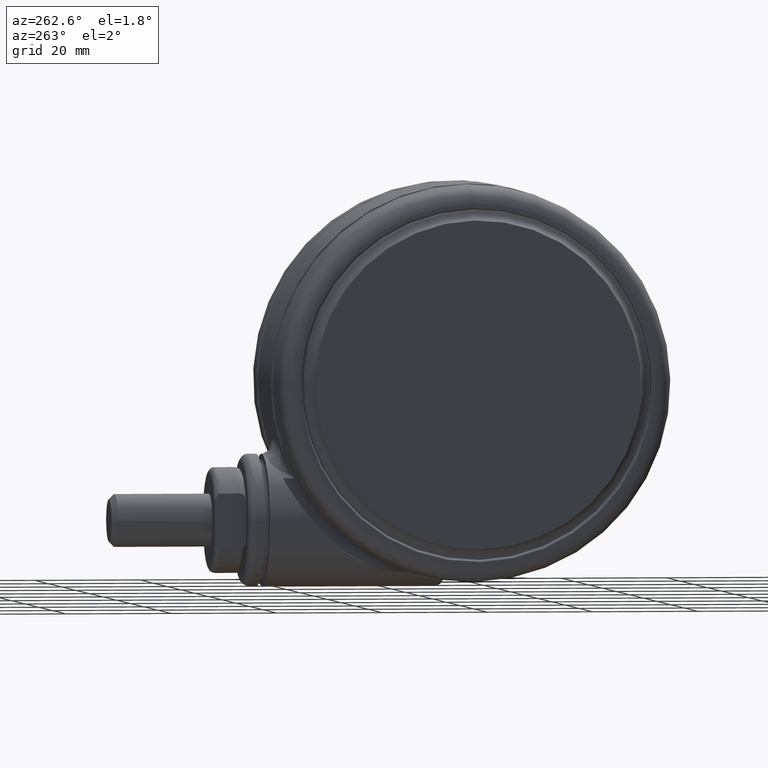
[diagram: clean part render]
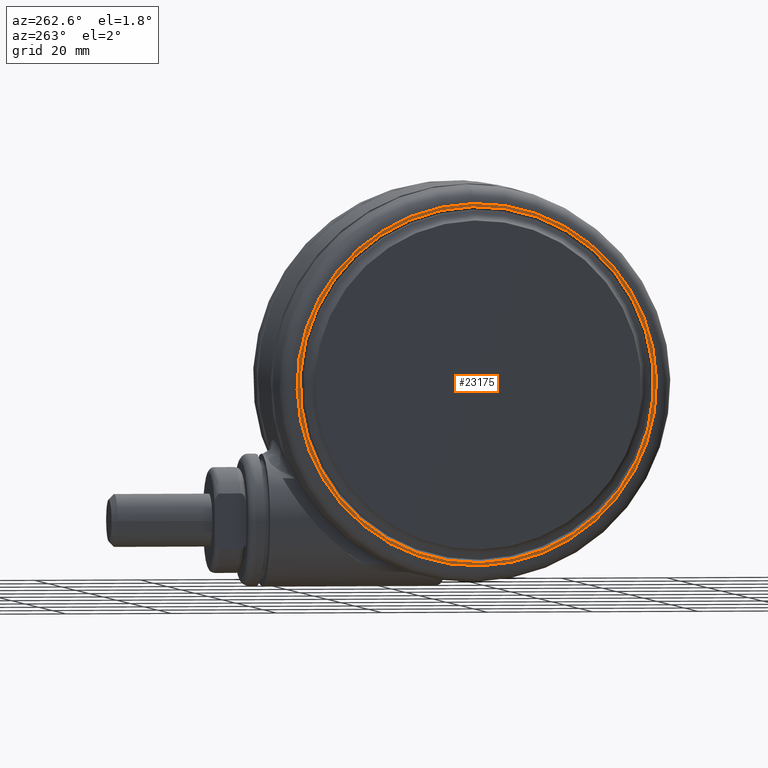
[diagram: same view with one face highlighted and labeled with its STEP entity id]
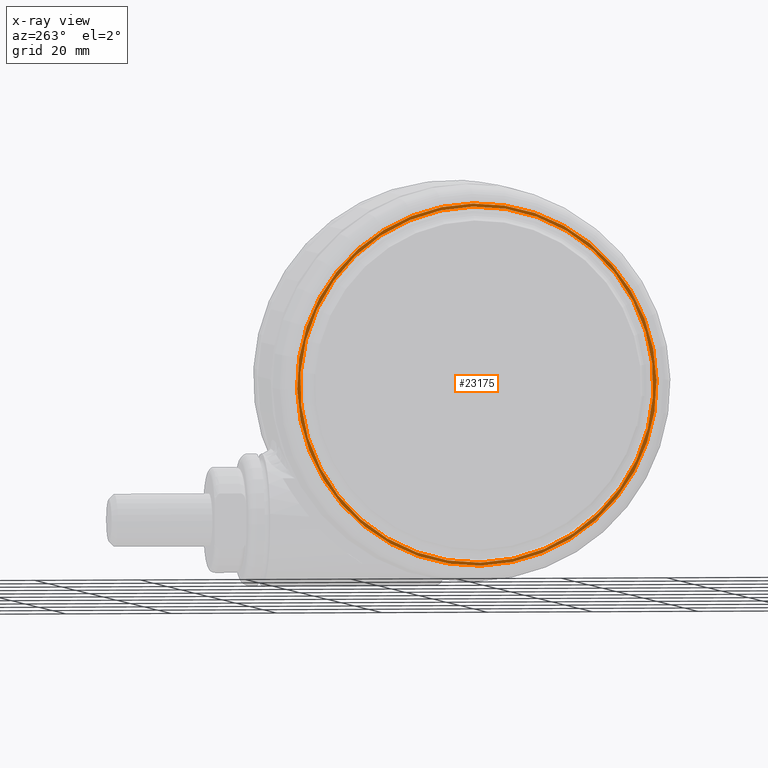
[diagram: x-ray of the same camera — body ghosted, the highlighted face saturated]
A machine part, auxiliary view. The second image highlights one B-rep face of the part: STEP entity #23175.
The next image is the same camera in x-ray: the body ghosted, the highlighted face saturated — about 0% of this face is hidden behind the body in this view.
In plain terms, the highlighted planar face has unit normal (-1, 0, 0).
Its self-contained STEP definition (entity closure, byte-faithful):
#192 = CARTESIAN_POINT ( 'NONE',  ( -14.06012315911549300, -31.09979316567394700, -45.89999999999998400 ) ) ;
#856 = VERTEX_POINT ( 'NONE', #56056 ) ;
#1729 = CARTESIAN_POINT ( 'NONE',  ( -3.469446951953614200E-014, -3.469446951953614200E-014, -45.89999999999998400 ) ) ;
#2204 = CARTESIAN_POINT ( 'NONE',  ( 14.06012315911542700, 31.09979316567387600, -45.89999999999998400 ) ) ;
#6061 = CARTESIAN_POINT ( 'NONE',  ( -3.469446951953614200E-014, -3.469446951953614200E-014, -45.89999999999998400 ) ) ;
#6245 = DIRECTION ( 'NONE',  ( 0.4119530739487650700, 0.9112050619175485800, 0.0000000000000000000 ) ) ;
#6656 = CIRCLE ( 'NONE', #49167, 33.55000000000000400 ) ;
#10580 = DIRECTION ( 'NONE',  ( 0.4119530739487650700, 0.9112050619175485800, 0.0000000000000000000 ) ) ;
#12516 = CIRCLE ( 'NONE', #54286, 34.13039991264668100 ) ;
#15788 = DIRECTION ( 'NONE',  ( 0.4119530739487650100, 0.9112050619175484600, 0.0000000000000000000 ) ) ;
#16890 = CARTESIAN_POINT ( 'NONE',  ( -3.469446951953614200E-014, -3.469446951953614200E-014, -45.90000000000002000 ) ) ;
#17069 = FACE_BOUND ( 'NONE', #43207, .T. ) ;
#20872 = CIRCLE ( 'NONE', #23924, 34.13039991264668100 ) ;
#21343 = DIRECTION ( 'NONE',  ( 0.4119530739487650700, 0.9112050619175484600, 0.0000000000000000000 ) ) ;
#22221 = ORIENTED_EDGE ( 'NONE', *, *, #47985, .T. ) ;
#22891 = CARTESIAN_POINT ( 'NONE',  ( -3.469446951953614200E-014, -3.469446951953614200E-014, -45.90000000000002000 ) ) ;
#23175 = ADVANCED_FACE ( 'NONE', ( #52763, #17069 ), #29073, .T. ) ;
#23924 = AXIS2_PLACEMENT_3D ( 'NONE', #1729, #33072, #6245 ) ;
#26351 = CIRCLE ( 'NONE', #29238, 33.55000000000000400 ) ;
#27404 = DIRECTION ( 'NONE',  ( 0.4119530739487650700, 0.9112050619175484600, 0.0000000000000000000 ) ) ;
#29073 = PLANE ( 'NONE',  #38824 ) ;
#29238 = AXIS2_PLACEMENT_3D ( 'NONE', #22891, #54225, #27404 ) ;
#33072 = DIRECTION ( 'NONE',  ( 0.0000000000000000000, 0.0000000000000000000, -1.000000000000000000 ) ) ;
#33595 = CARTESIAN_POINT ( 'NONE',  ( 13.82102563098103500, 30.57092982733372100, -45.89999999999999900 ) ) ;
#34521 = EDGE_LOOP ( 'NONE', ( #42206, #22221 ) ) ;
#36633 = EDGE_CURVE ( 'NONE', #51191, #856, #6656, .T. ) ;
#37403 = DIRECTION ( 'NONE',  ( 0.0000000000000000000, 0.0000000000000000000, -1.000000000000000000 ) ) ;
#38048 = VERTEX_POINT ( 'NONE', #2204 ) ;
#38824 = AXIS2_PLACEMENT_3D ( 'NONE', #33595, #42594, #15788 ) ;
#39783 = ORIENTED_EDGE ( 'NONE', *, *, #36633, .F. ) ;
#42206 = ORIENTED_EDGE ( 'NONE', *, *, #48676, .T. ) ;
#42594 = DIRECTION ( 'NONE',  ( 0.0000000000000000000, 0.0000000000000000000, -1.000000000000000000 ) ) ;
#43207 = EDGE_LOOP ( 'NONE', ( #39783, #47736 ) ) ;
#43842 = CARTESIAN_POINT ( 'NONE',  ( 13.82102563098103500, 30.57092982733372100, -45.90000000000002000 ) ) ;
#43864 = VERTEX_POINT ( 'NONE', #192 ) ;
#47736 = ORIENTED_EDGE ( 'NONE', *, *, #49973, .F. ) ;
#47985 = EDGE_CURVE ( 'NONE', #43864, #38048, #12516, .T. ) ;
#48173 = DIRECTION ( 'NONE',  ( 0.0000000000000000000, 0.0000000000000000000, -1.000000000000000000 ) ) ;
#48676 = EDGE_CURVE ( 'NONE', #38048, #43864, #20872, .T. ) ;
#49167 = AXIS2_PLACEMENT_3D ( 'NONE', #16890, #48173, #21343 ) ;
#49973 = EDGE_CURVE ( 'NONE', #856, #51191, #26351, .T. ) ;
#51191 = VERTEX_POINT ( 'NONE', #43842 ) ;
#52763 = FACE_OUTER_BOUND ( 'NONE', #34521, .T. ) ;
#54225 = DIRECTION ( 'NONE',  ( 0.0000000000000000000, 0.0000000000000000000, -1.000000000000000000 ) ) ;
#54286 = AXIS2_PLACEMENT_3D ( 'NONE', #6061, #37403, #10580 ) ;
#56056 = CARTESIAN_POINT ( 'NONE',  ( -13.82102563098109900, -30.57092982733379600, -45.90000000000002000 ) ) ;